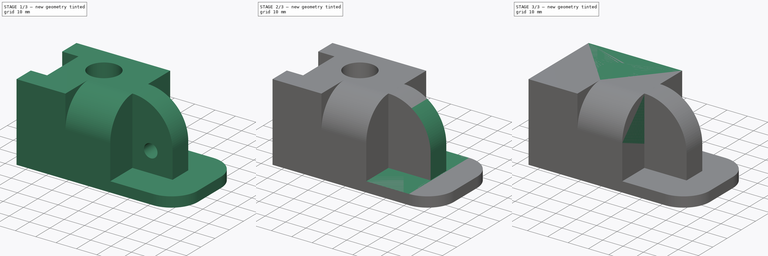
[diagram: build sequence overview — one tinted view per stage of 3, left to right]
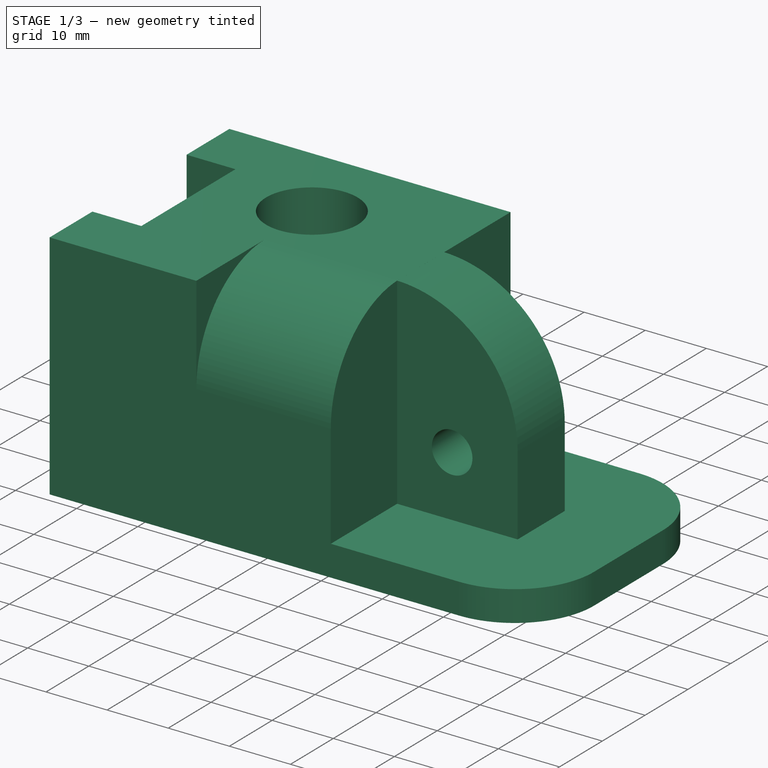
[diagram: stage 1 of 3 — iso view after this stage's code; geometry added in this stage tinted green]
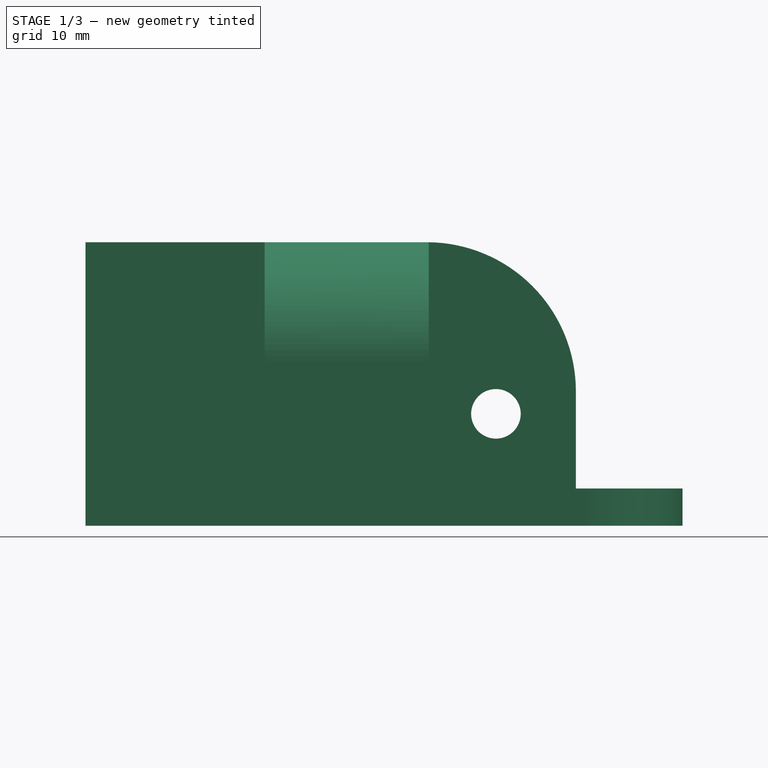
[diagram: stage 1 of 3 — front view after this stage's code; geometry added in this stage tinted green]
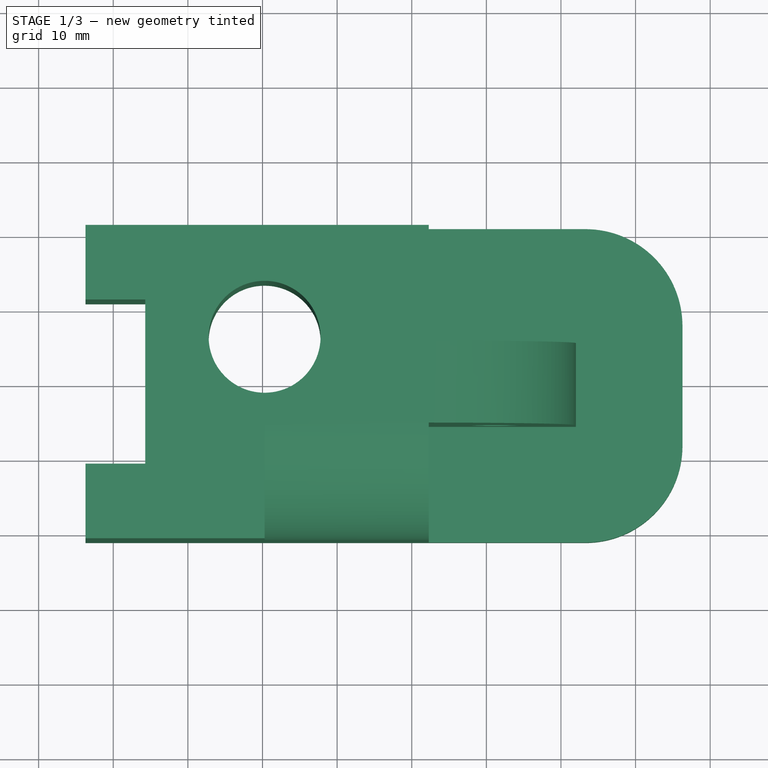
[diagram: stage 1 of 3 — top view after this stage's code; geometry added in this stage tinted green]
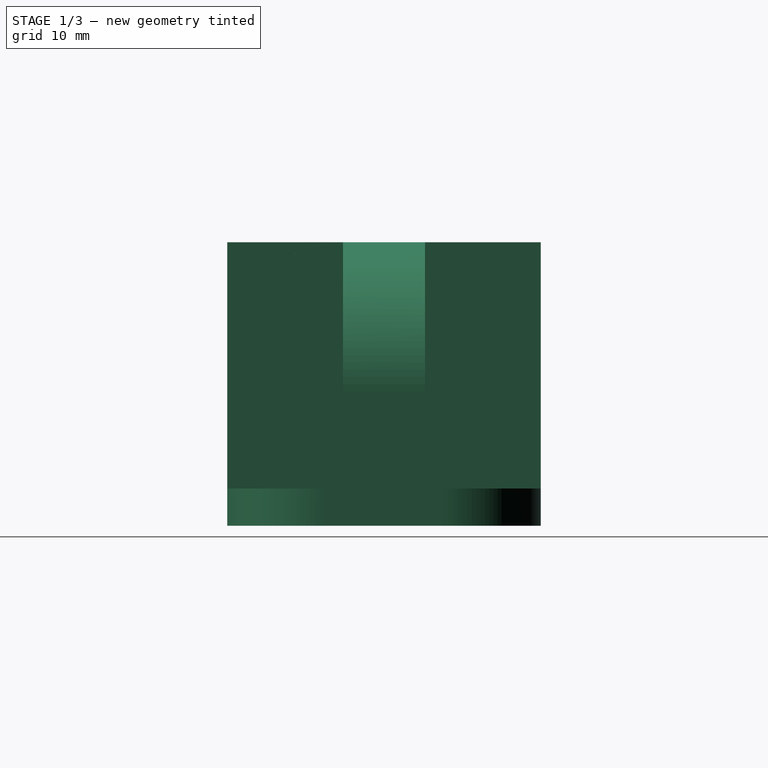
[diagram: stage 1 of 3 — right view after this stage's code; geometry added in this stage tinted green]
FCSTD DOCUMENT  (FreeCAD 0.16R)
Label: Fig 3.39 - ko
License: All rights reserved
LicenseURL: http://en.wikipedia.org/wiki/All_rights_reserved
objects: Sketcher::SketchObject×8, PartDesign::Pad×4, PartDesign::Pocket×3, Part::MultiFuse×1, Part::Feature×1
note: 24 computed .brp shape members not serialized (recipe doc carries the construction recipe); baked Part::Feature solids carry a one-line shape summary decoded from their .brp

FEATURE [Part::Feature] Fusion001
  shape: bbox 80 x 42 x 38 mm, 20 faces (baked)
FEATURE [Sketcher::SketchObject] Sketch005
  ExternalGeometry = -> [Fusion001]
  Placement = pos=(0,0,38) rot=(0,0,1;0rad)
  Support = -> Fusion001 [Face4]
  sketch-geometry (1):
    g0: Circle CenterX=-9.71478 CenterY=6 CenterZ=0 NormalX=0 NormalY=0 NormalZ=1 Radius=7.5
  constraints (3):
    c: DistanceX(g-3,g0) = 24
    c: DistanceY(g0,g-3) = 15
    c: Radius(g0) = 7.5
FEATURE [PartDesign::Pocket] Pocket
  Length = 5
  Sketch = -> Sketch005
  Type = 1
FEATURE [Sketcher::SketchObject] Sketch006
  ExternalGeometry = -> [Pocket]
  Placement = pos=(0,-5.5,0) rot=(1,0,0;1.5708rad)
  Support = -> Pocket [Face6]
  sketch-geometry (1):
    g0: Circle CenterX=21.2852 CenterY=15 CenterZ=0 NormalX=0 NormalY=0 NormalZ=1 Radius=3.32174
  constraints (2):
    c: DistanceY(g-3,g0) = 10
    c: DistanceX(g-3,g0) = 9
FEATURE [PartDesign::Pocket] Pocket001
  Length = 5
  Sketch = -> Sketch006
  Type = 1
FEATURE [Sketcher::SketchObject] Sketch007
  ExternalGeometry = -> [Pocket001]
  Placement = pos=(0,0,38) rot=(0,0,1;0rad)
  Support = -> Pocket001 [Face4]
  sketch-geometry (4):
    g0: LineSegment StartX=-40.3934 StartY=11 StartZ=0 EndX=-25.7148 EndY=11 EndZ=0
    g1: LineSegment StartX=-25.7148 StartY=11 StartZ=0 EndX=-25.7148 EndY=-11 EndZ=0
    g2: LineSegment StartX=-25.7148 StartY=-11 StartZ=0 EndX=-40.3934 EndY=-11 EndZ=0
    g3: LineSegment StartX=-40.3934 StartY=-11 StartZ=0 EndX=-40.3934 EndY=11 EndZ=0
  constraints (11):
    c: Coincident(g0,g1)
    c: Coincident(g1,g2)
    c: Coincident(g2,g3)
    c: Coincident(g3,g0)
    c: Horizontal(g0)
    c: Horizontal(g2)
    c: Vertical(g1)
    c: Vertical(g3)
    c: DistanceY(g3,g3) = 22
    c: DistanceX(g-3,g0) = 8
    c: Symmetric(g0,g1,g-1)
FEATURE [PartDesign::Pocket] Pocket002
  Length = 5
  Sketch = -> Sketch007
  Type = 1
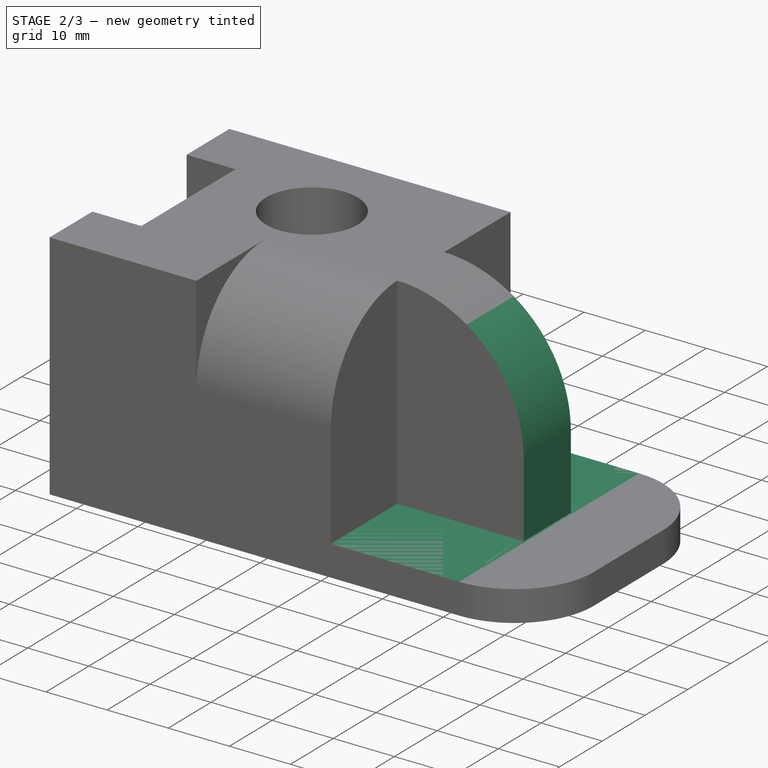
[diagram: stage 2 of 3 — iso view after this stage's code; geometry added in this stage tinted green]
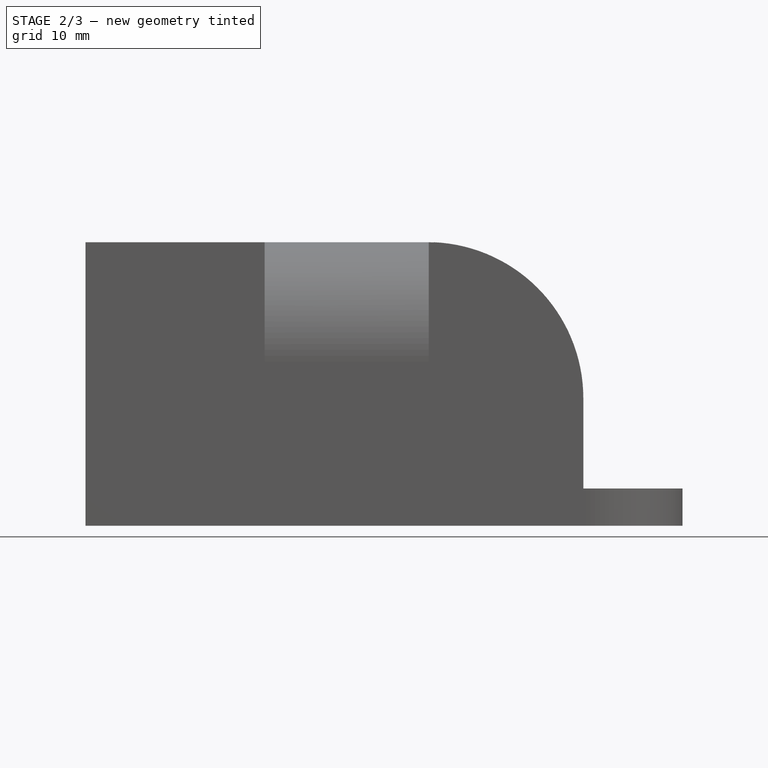
[diagram: stage 2 of 3 — front view after this stage's code; geometry added in this stage tinted green]
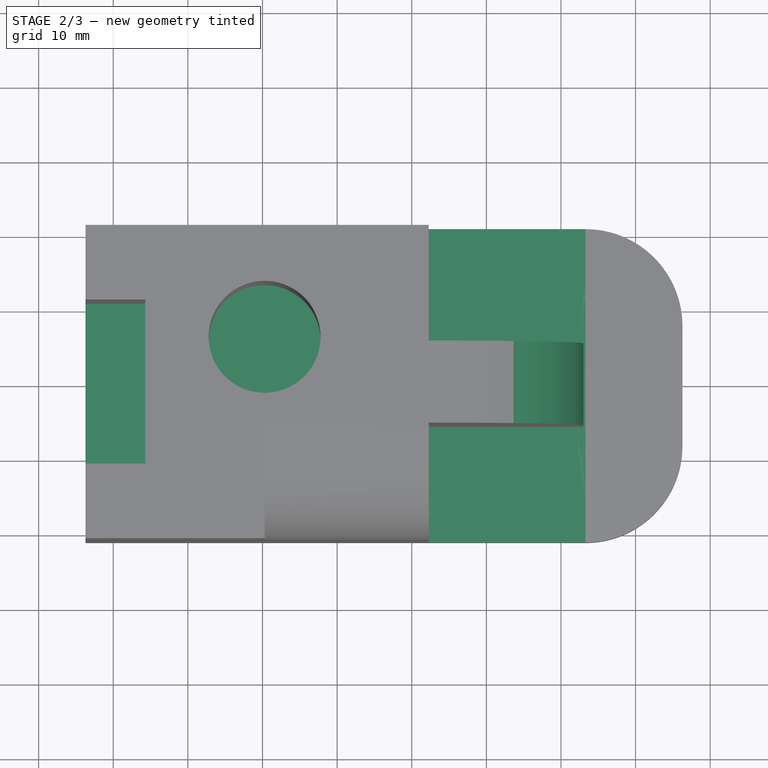
[diagram: stage 2 of 3 — top view after this stage's code; geometry added in this stage tinted green]
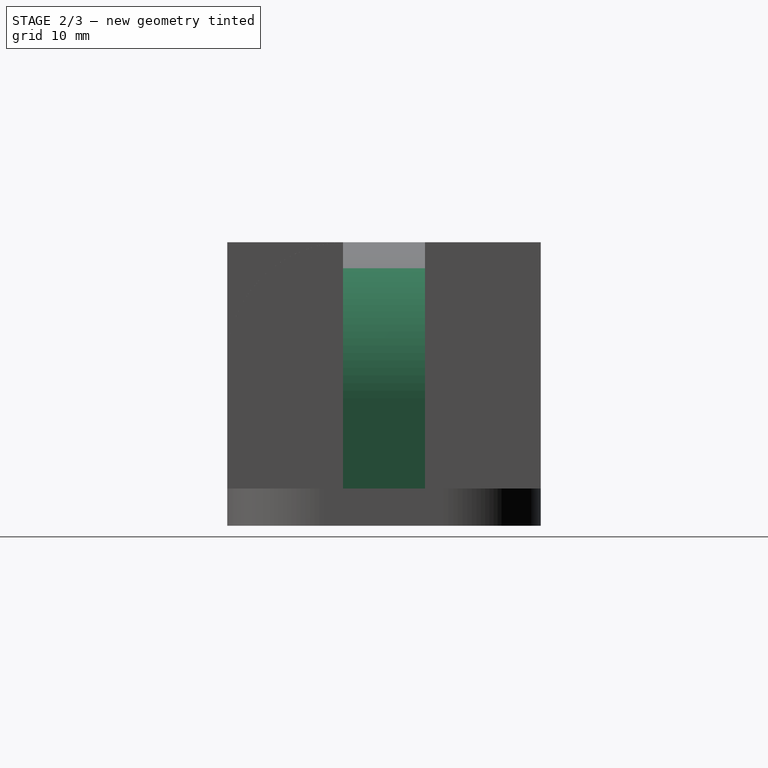
[diagram: stage 2 of 3 — right view after this stage's code; geometry added in this stage tinted green]
FEATURE [Sketcher::SketchObject] Sketch
  sketch-geometry (7):
    g0: LineSegment StartX=-40 StartY=21 StartZ=0 EndX=27 EndY=21 EndZ=0
    g1: LineSegment StartX=40 StartY=8 StartZ=0 EndX=40 EndY=-8 EndZ=0
    g2: LineSegment StartX=27 StartY=-21 StartZ=0 EndX=-40 EndY=-21 EndZ=0
    g3: LineSegment StartX=-40 StartY=-21 StartZ=0 EndX=-40 EndY=21 EndZ=0
    g4: ArcOfCircle CenterX=27 CenterY=8 CenterZ=0 NormalX=0 NormalY=0 NormalZ=1 Radius=13 StartAngle=0 EndAngle=1.5708
    g5: ArcOfCircle CenterX=27 CenterY=-8 CenterZ=0 NormalX=0 NormalY=0 NormalZ=1 Radius=13 StartAngle=4.71239 EndAngle=6.28319
    g6: LineSegment [constr] StartX=-40 StartY=-28.1201 StartZ=0 EndX=40 EndY=-28.1201 EndZ=0
  constraints (20):
    c: Coincident(g2,g3)
    c: Coincident(g3,g0)
    c: Horizontal(g0)
    c: Horizontal(g2)
    c: Vertical(g1)
    c: Vertical(g3)
    c: DistanceY(g3,g3) = 42
    c: Symmetric(g2,g0,g-1)
    c: Tangent(g0,g4) = 1.5708
    c: Tangent(g1,g4) = 1.5708
    c: Tangent(g1,g5) = 1.5708
    c: Tangent(g2,g5) = 1.5708
    c: Radius(g5) = 13
    c: Radius(g4) = 13
    c: DistanceX(g2,g1) = 80
    c: Horizontal(g6)
    c: DistanceX(g6,g6) = 80
    c: DistanceX(g6,g2) = 0
    c: DistanceX(g6,g1) = 0
    c: Symmetric(g6,g6,g-2)
FEATURE [PartDesign::Pad] Pad
  Length = 5
  Length2 = 100
  Sketch = -> Sketch
  Type = 0
FEATURE [Sketcher::SketchObject] Sketch003
  Placement = pos=(0,0,0) rot=(1,0,0;1.5708rad)
  sketch-geometry (3):
    g0: LineSegment StartX=30.0286 StartY=51.4232 StartZ=0 EndX=30.0286 EndY=18.4232 EndZ=0
    g1: LineSegment StartX=30.0286 StartY=18.4232 StartZ=0 EndX=50.0286 EndY=18.4232 EndZ=0
    g2: ArcOfCircle CenterX=23.7896 CenterY=25.9367 CenterZ=0 NormalX=0 NormalY=0 NormalZ=1 Radius=26.239 StartAngle=0 EndAngle=1.33072
  constraints (7):
    c: Vertical(g0)
    c: Coincident(g0,g1)
    c: Horizontal(g1)
    c: DistanceX(g1,g1) = 20
    c: DistanceY(g0,g0) = 33
    c: Tangent(g1,g2) = 1.5708
    c: Coincident(g2,g0)
FEATURE [Sketcher::SketchObject] Sketch004
  Placement = pos=(0,0,0) rot=(-1,0,0;4.71239rad)
  sketch-geometry (4):
    g0: LineSegment StartX=13 StartY=38 StartZ=0 EndX=13 EndY=5 EndZ=0
    g1: LineSegment StartX=13 StartY=5 StartZ=0 EndX=33 EndY=5 EndZ=0
    g2: LineSegment StartX=33 StartY=17.0649 StartZ=0 EndX=33 EndY=5 EndZ=0
    g3: ArcOfCircle CenterX=12.0431 CenterY=17.0649 CenterZ=0 NormalX=0 NormalY=0 NormalZ=1 Radius=20.9569 StartAngle=0 EndAngle=1.52512
  constraints (10):
    c: Vertical(g0)
    c: Coincident(g0,g1)
    c: Horizontal(g1)
    c: DistanceY(g0,g0) = 33
    c: DistanceX(g1,g1) = 20
    c: DistanceY(g-1,g0) = 5
    c: Coincident(g2,g1)
    c: Vertical(g2)
    c: Tangent(g2,g3) = 1.5708
    c: Coincident(g0,g3)
FEATURE [PartDesign::Pad] Pad003
  Length = 11
  Length2 = 100
  Midplane = true
  Placement = pos=(0,0,0) rot=(-1,0,0;4.71239rad)
  Sketch = -> Sketch004
  Type = 0
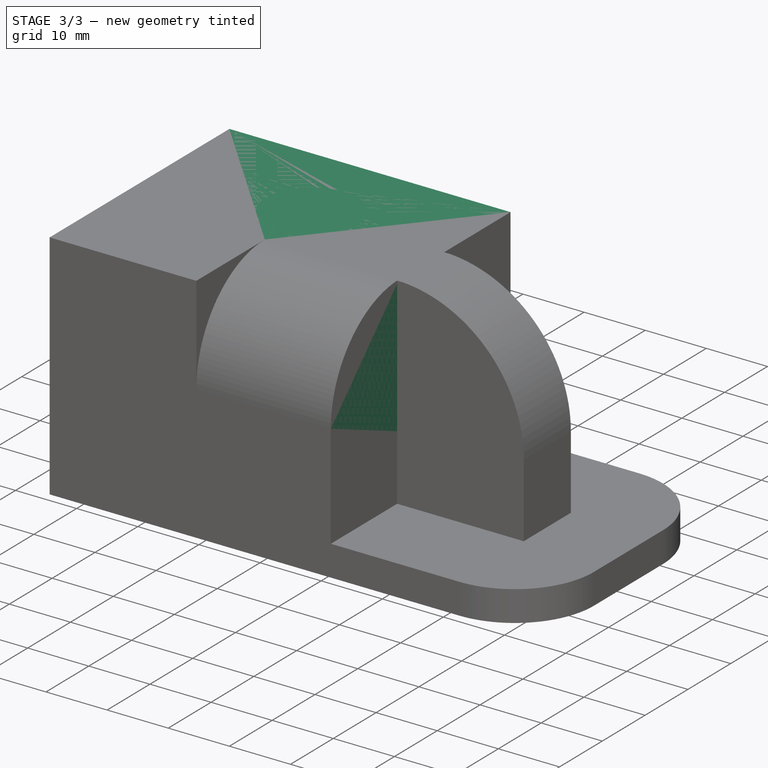
[diagram: stage 3 of 3 — iso view after this stage's code; geometry added in this stage tinted green]
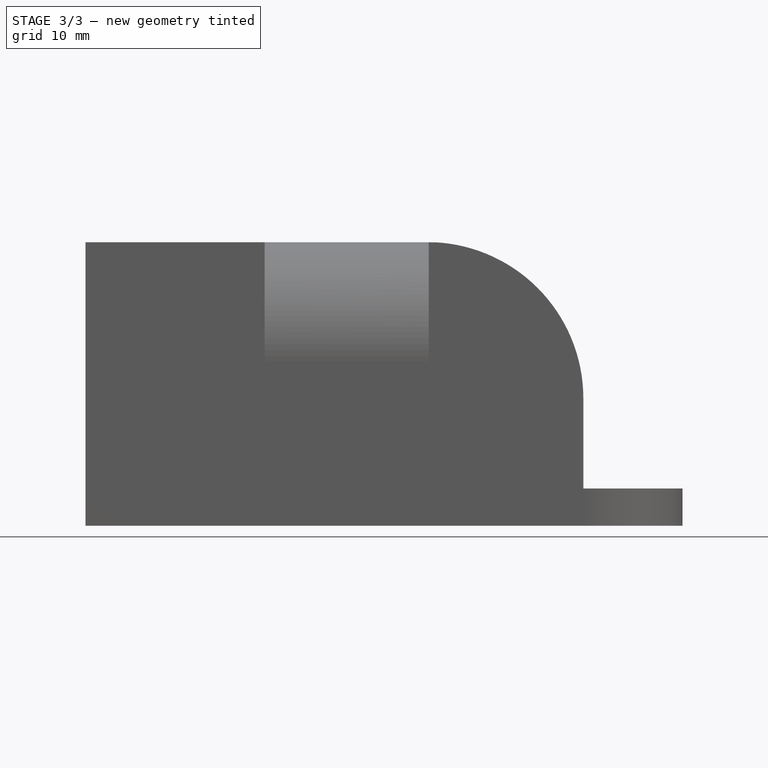
[diagram: stage 3 of 3 — front view after this stage's code; geometry added in this stage tinted green]
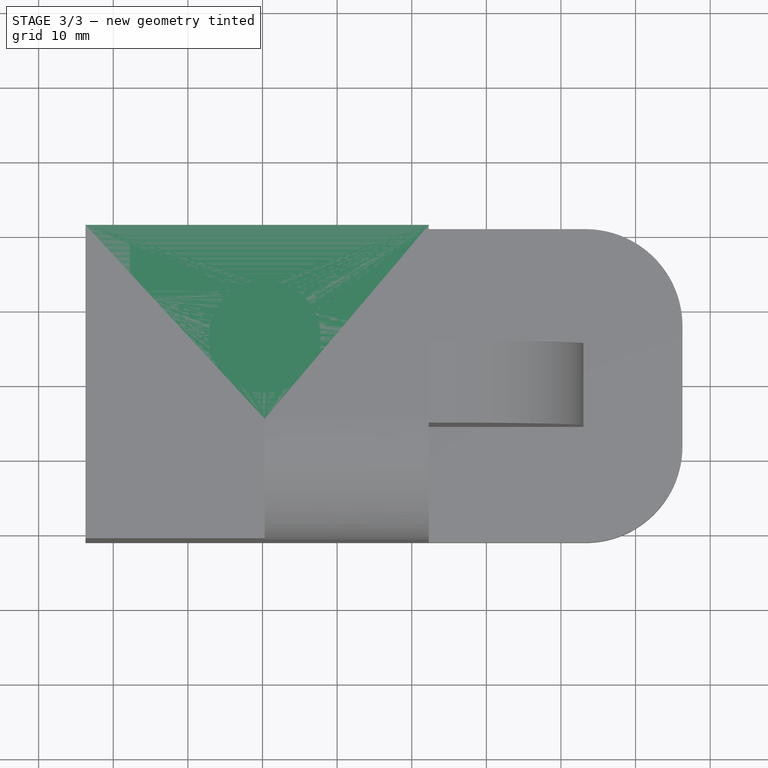
[diagram: stage 3 of 3 — top view after this stage's code; geometry added in this stage tinted green]
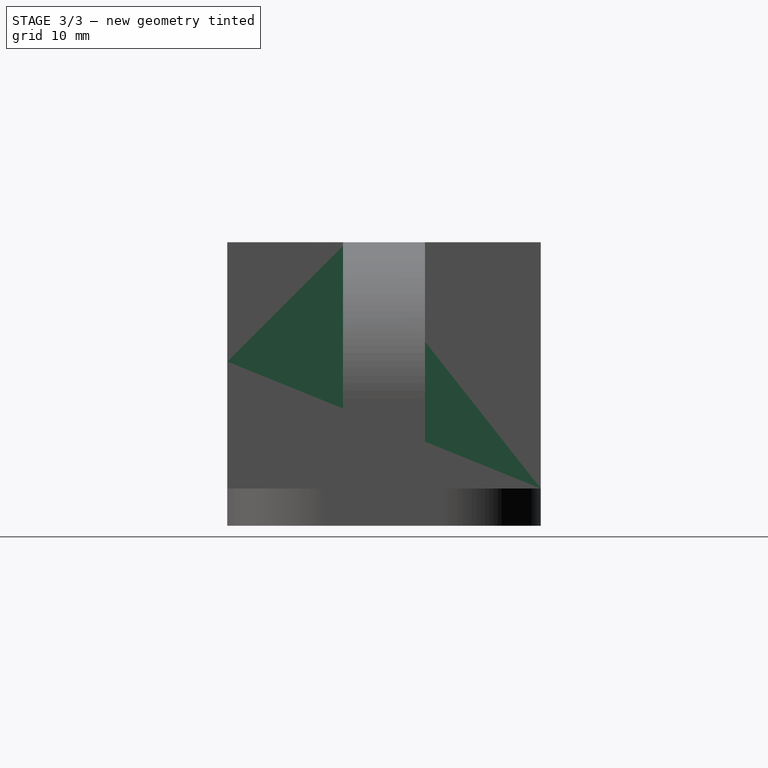
[diagram: stage 3 of 3 — right view after this stage's code; geometry added in this stage tinted green]
FEATURE [Sketcher::SketchObject] Sketch001
  ExternalGeometry = -> [Pad]
  Placement = pos=(0,0,5) rot=(0,0,1;0rad)
  Support = -> Pad [Face8]
  sketch-geometry (4):
    g0: LineSegment StartX=-33.7148 StartY=21 StartZ=0 EndX=-9.71478 EndY=21 EndZ=0
    g1: LineSegment StartX=-9.71478 StartY=21 StartZ=0 EndX=-9.71478 EndY=-21 EndZ=0
    g2: LineSegment StartX=-9.71478 StartY=-21 StartZ=0 EndX=-33.7148 EndY=-21 EndZ=0
    g3: LineSegment StartX=-33.7148 StartY=-21 StartZ=0 EndX=-33.7148 EndY=21 EndZ=0
  constraints (13):
    c: Coincident(g0,g1)
    c: Coincident(g1,g2)
    c: Coincident(g2,g3)
    c: Coincident(g3,g0)
    c: Horizontal(g0)
    c: Horizontal(g2)
    c: Vertical(g1)
    c: Vertical(g3)
    c: Coincident(g2,g-5)
    c: Coincident(g2,g-4)
    c: Coincident(g0,g-4)
    c: Coincident(g0,g-3)
    c: DistanceX(g2,g1) = 24
FEATURE [PartDesign::Pad] Pad001
  Length = 33
  Length2 = 100
  Sketch = -> Sketch001
  Type = 0
FEATURE [Sketcher::SketchObject] Sketch002
  ExternalGeometry = -> [Pad001]
  Placement = pos=(-9.71478,0,0) rot=(0.57735,0.57735,0.57735;2.0944rad)
  Support = -> Pad001 [Face6]
  sketch-geometry (5):
    g0: LineSegment StartX=-5 StartY=38 StartZ=0 EndX=21 EndY=38 EndZ=0
    g1: LineSegment StartX=21 StartY=38 StartZ=0 EndX=21 EndY=5 EndZ=0
    g2: LineSegment StartX=21 StartY=5 StartZ=0 EndX=-21 EndY=5 EndZ=0
    g3: LineSegment StartX=-21 StartY=5 StartZ=0 EndX=-21 EndY=22 EndZ=0
    g4: ArcOfCircle CenterX=-5 CenterY=22 CenterZ=0 NormalX=0 NormalY=0 NormalZ=1 Radius=16 StartAngle=1.5708 EndAngle=3.14159
  constraints (13):
    c: Coincident(g0,g1)
    c: Coincident(g1,g2)
    c: Coincident(g2,g3)
    c: Horizontal(g0)
    c: Horizontal(g2)
    c: Vertical(g1)
    c: Vertical(g3)
    c: Coincident(g1,g-3)
    c: Coincident(g0,g-3)
    c: Tangent(g0,g4) = 1.5708
    c: Tangent(g3,g4) = 1.5708
    c: Radius(g4) = 16
    c: Coincident(g-4,g2)
FEATURE [PartDesign::Pad] Pad002
  Length = 22
  Length2 = 100
  Sketch = -> Sketch002
  Type = 0
FEATURE [Part::MultiFuse] Fusion
  Shapes = -> [Pad002,Pad003]
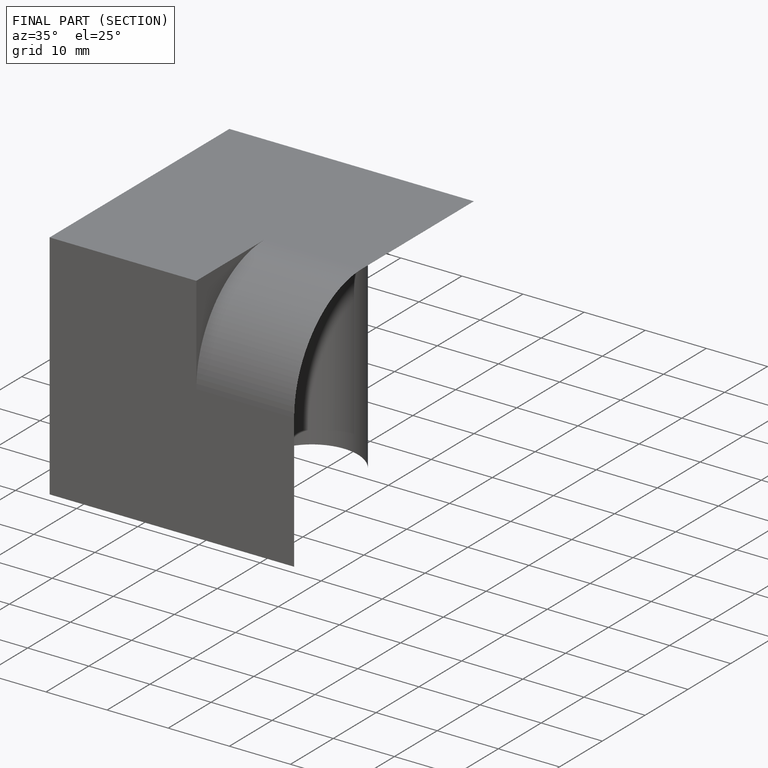
[diagram: finished part — half-section view (interior)]
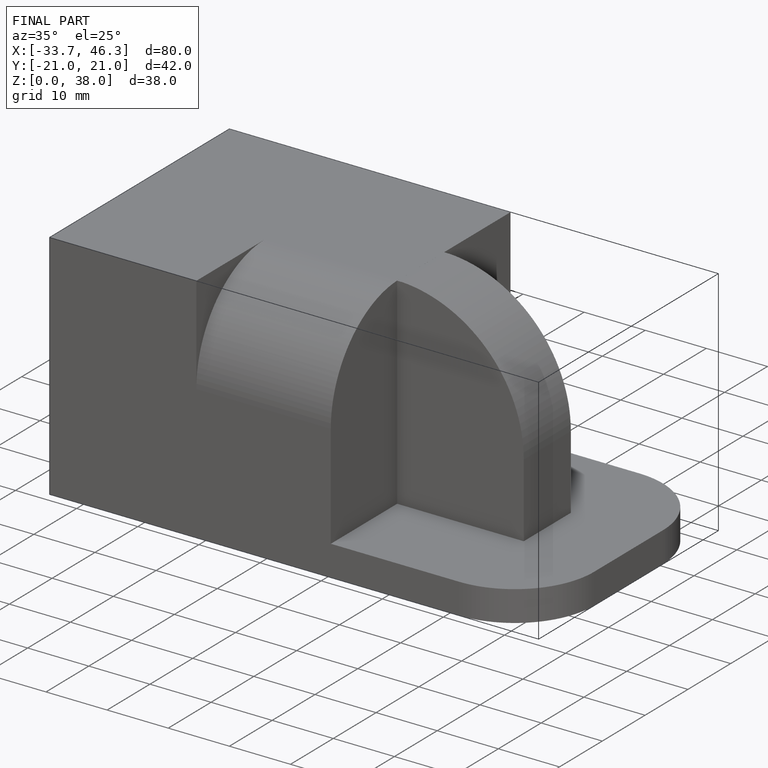
[diagram: finished part — iso view with bounding-box wireframe]
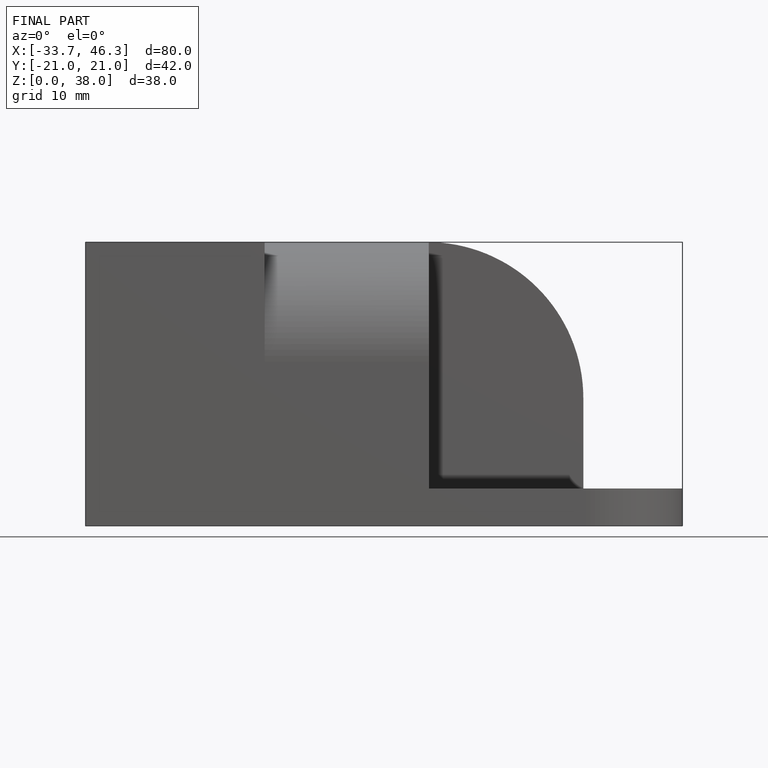
[diagram: finished part — front view with bounding-box wireframe]
